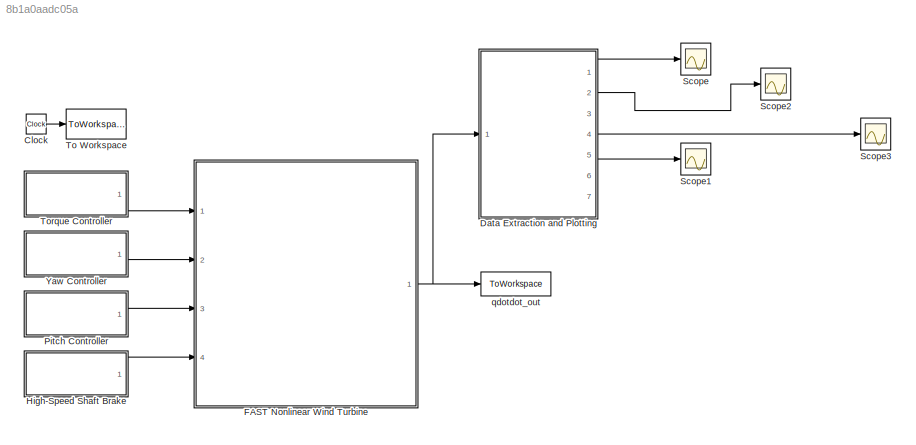
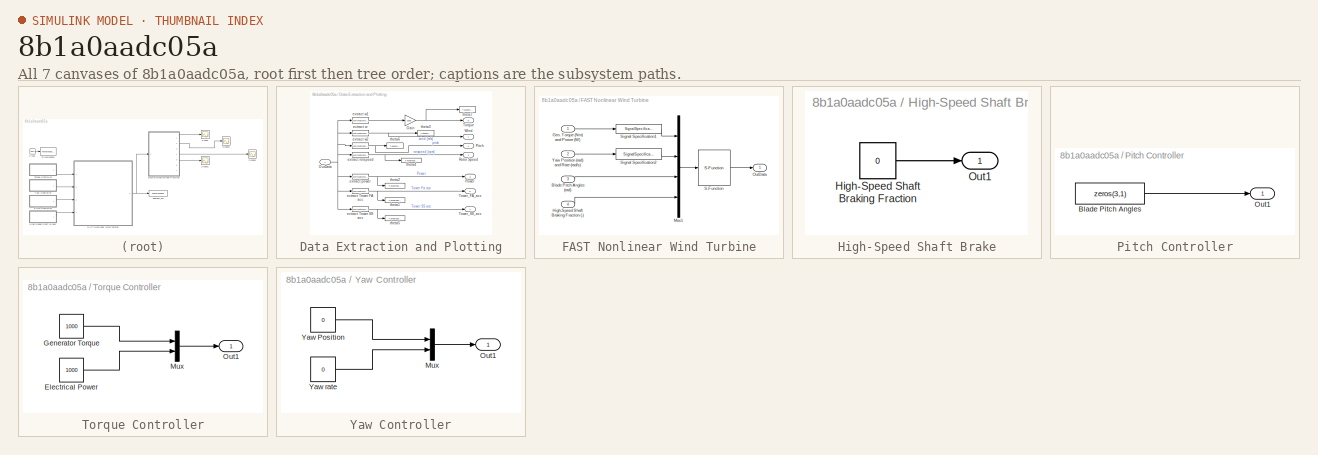
[diagram: thumbnail index - all 7 canvases of the model, root first then tree order]
MODEL slx_8b1a0aadc05a
KIND model
CONFIG AbsTol = auto
CONFIG EnableMultiTasking = on
CONFIG FixedStep = DT
CONFIG MaxStep = DT
CONFIG MinStep = auto
CONFIG RelTol = 1e-3
CONFIG SampleTimeConstraint = Unconstrained
CONFIG Solver = ode4
CONFIG SolverName = ode4
CONFIG StartTime = 0.0
CONFIG StopTime = TMax
BLOCK [Clock] Clock
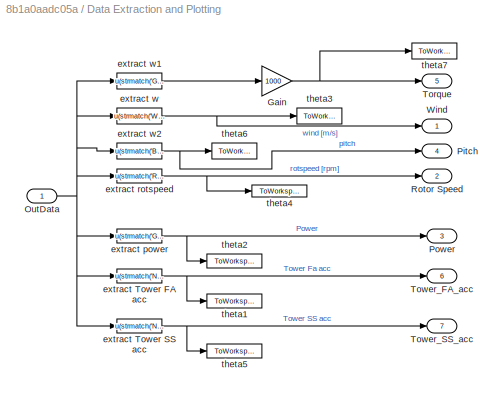
BLOCK [SubSystem] Data Extraction and Plotting
  Ports = [1, 7]
  RequestExecContextInheritance = off
  Variant = off
BLOCK [Gain] Data Extraction and Plotting/Gain
  Gain = 1000
  OutDataTypeStr = Inherit: Inherit via internal rule
  ParamDataTypeStr = Inherit: Inherit via internal rule
  SaturateOnIntegerOverflow = off
BLOCK [Inport] Data Extraction and Plotting/OutData
  IconDisplay = Port number
BLOCK [Outport] Data Extraction and Plotting/Pitch
  IconDisplay = Port number
  Port = 4
BLOCK [Outport] Data Extraction and Plotting/Power
  IconDisplay = Port number
  Port = 3
BLOCK [Outport] Data Extraction and Plotting/Rotor Speed
  IconDisplay = Port number
  Port = 2
BLOCK [Outport] Data Extraction and Plotting/Torque
  IconDisplay = Port number
  Port = 5
BLOCK [Outport] Data Extraction and Plotting/Tower_FA_acc
  IconDisplay = Port number
  Port = 6
BLOCK [Outport] Data Extraction and Plotting/Tower_SS_acc
  IconDisplay = Port number
  Port = 7
BLOCK [Outport] Data Extraction and Plotting/Wind
  IconDisplay = Port number
BLOCK [Fcn] Data Extraction and Plotting/extract Tower FA acc
  Expr = u(strmatch('NcIMUTAxs',OutList))
BLOCK [Fcn] Data Extraction and Plotting/extract Tower SS acc
  Expr = u(strmatch('NcIMUTAys',OutList))
BLOCK [Fcn] Data Extraction and Plotting/extract power
  Expr = u(strmatch('GenPwr',OutList))
BLOCK [Fcn] Data Extraction and Plotting/extract rotspeed
  Expr = u(strmatch('RotSpeed',OutList))
BLOCK [Fcn] Data Extraction and Plotting/extract w
  Expr = u(strmatch('Wind1VelX',OutList))
BLOCK [Fcn] Data Extraction and Plotting/extract w1
  Expr = u(strmatch('GenTq',OutList))
BLOCK [Fcn] Data Extraction and Plotting/extract w2
  Expr = u(strmatch('BlPitch1',OutList))
BLOCK [ToWorkspace] Data Extraction and Plotting/theta1
  Decimation = 3
  MaxDataPoints = Inf
  Ports = [1]
  SampleTime = -1
  VariableName = Tower_fa
BLOCK [ToWorkspace] Data Extraction and Plotting/theta2
  Decimation = 3
  MaxDataPoints = Inf
  Ports = [1]
  SampleTime = -1
  VariableName = GenPwr
BLOCK [ToWorkspace] Data Extraction and Plotting/theta3
  Decimation = 3
  MaxDataPoints = Inf
  Ports = [1]
  SampleTime = -1
  VariableName = wind
BLOCK [ToWorkspace] Data Extraction and Plotting/theta4
  Decimation = 3
  MaxDataPoints = Inf
  Ports = [1]
  SampleTime = -1
  VariableName = rotspeed
BLOCK [ToWorkspace] Data Extraction and Plotting/theta5
  Decimation = 3
  MaxDataPoints = Inf
  Ports = [1]
  SampleTime = -1
  VariableName = Tower_ss
BLOCK [ToWorkspace] Data Extraction and Plotting/theta6
  Decimation = 3
  MaxDataPoints = Inf
  Ports = [1]
  SampleTime = -1
  VariableName = pitch
BLOCK [ToWorkspace] Data Extraction and Plotting/theta7
  Decimation = 3
  MaxDataPoints = Inf
  Ports = [1]
  SampleTime = -1
  VariableName = Torque
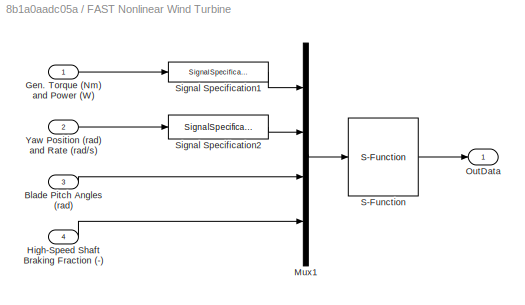
BLOCK [SubSystem] FAST Nonlinear Wind Turbine
  Ports = [4, 1]
  RequestExecContextInheritance = off
  Variant = off
BLOCK [Inport] FAST Nonlinear Wind Turbine/Blade Pitch Angles (rad)
  IconDisplay = Port number
  Port = 3
BLOCK [Inport] FAST Nonlinear Wind Turbine/Gen. Torque (Nm) and Power (W)
  IconDisplay = Port number
BLOCK [Inport] FAST Nonlinear Wind Turbine/High-Speed Shaft Braking Fraction (-)
  IconDisplay = Port number
  Port = 4
BLOCK [Mux] FAST Nonlinear Wind Turbine/Mux1
  DisplayOption = bar
  Ports = [4, 1]
BLOCK [Outport] FAST Nonlinear Wind Turbine/OutData
  IconDisplay = Port number
BLOCK [S-Function] FAST Nonlinear Wind Turbine/S-Function
  EnableBusSupport = off
  FunctionName = FAST_SFunc
  Parameters = FAST_InputFileName, TMax, 0
  Ports = [1, 1]
  SFcnIsStateOwnerBlock = off
  SFunctionDeploymentMode = off
BLOCK [SignalSpecification] FAST Nonlinear Wind Turbine/Signal Specification1
  Dimensions = 2
  OutDataTypeStr = double
  SignalType = real
BLOCK [SignalSpecification] FAST Nonlinear Wind Turbine/Signal Specification2
  Dimensions = 2
  OutDataTypeStr = double
  SignalType = real
BLOCK [Inport] FAST Nonlinear Wind Turbine/Yaw Position (rad) and Rate (rad//s)
  IconDisplay = Port number
  Port = 2
BLOCK [SubSystem] High-Speed Shaft Brake
  Ports = [0, 1]
  RequestExecContextInheritance = off
  Variant = off
BLOCK [Constant] High-Speed Shaft Brake/High-Speed Shaft Braking Fraction
  Value = 0
BLOCK [Outport] High-Speed Shaft Brake/Out1
  IconDisplay = Port number
BLOCK [SubSystem] Pitch Controller
  Ports = [0, 1]
  RequestExecContextInheritance = off
  Variant = off
BLOCK [Constant] Pitch Controller/Blade Pitch Angles
  Value = zeros(3,1)
BLOCK [Outport] Pitch Controller/Out1
  IconDisplay = Port number
BLOCK [Scope] Scope
  NumInputPorts = 1
  Ports = [1]
  ScopeSpecificationString = Simulink.scopes.TimeScopeBlockCfg('CurrentConfiguration', extmgr.ConfigurationSet(extmgr.Configuration('Core','General UI',true),extmgr.Configuration('Core','Source UI',true),extmgr.Configuration('Sources','WiredSimulink',true),extmgr.Configuration('Visuals','Time Domain',true,'SerializedDisplays',{struct('MinYLimReal','7.00000','MaxYLimReal','9.00000','YLabelReal','','MinYLimMag','7.00000','MaxYL...<+1390ch>
BLOCK [Scope] Scope1
  NumInputPorts = 1
  Ports = [1]
  ScopeSpecificationString = Simulink.scopes.TimeScopeBlockCfg('CurrentConfiguration', extmgr.ConfigurationSet(extmgr.Configuration('Core','General UI',true),extmgr.Configuration('Core','Source UI',true),extmgr.Configuration('Sources','WiredSimulink',true,'DataLoggingVariableName','ScopeData1'),extmgr.Configuration('Visuals','Time Domain',true,'SerializedDisplays',{struct('MinYLimReal','16262.97283','MaxYLimReal','46074.11671...<+1479ch>
BLOCK [Scope] Scope2
  NumInputPorts = 1
  Ports = [1]
  ScopeSpecificationString = Simulink.scopes.TimeScopeBlockCfg('CurrentConfiguration', extmgr.ConfigurationSet(extmgr.Configuration('Core','General UI',true),extmgr.Configuration('Core','Source UI',true),extmgr.Configuration('Sources','WiredSimulink',true,'DataLoggingVariableName','ScopeData2'),extmgr.Configuration('Visuals','Time Domain',true,'SerializedDisplays',{struct('MinYLimReal','8.33786','MaxYLimReal','15.62092','YLab...<+1466ch>
BLOCK [Scope] Scope3
  NumInputPorts = 1
  Ports = [1]
  ScopeSpecificationString = Simulink.scopes.TimeScopeBlockCfg('CurrentConfiguration', extmgr.ConfigurationSet(extmgr.Configuration('Core','General UI',true),extmgr.Configuration('Core','Source UI',true),extmgr.Configuration('Sources','WiredSimulink',true,'DataLoggingVariableName','ScopeData3'),extmgr.Configuration('Visuals','Time Domain',true,'SerializedDisplays',{struct('MinYLimReal','-1.00000','MaxYLimReal','1.00000','YLab...<+1393ch>
BLOCK [ToWorkspace] To Workspace
  MaxDataPoints = inf
  Ports = [1]
  SampleTime = -1
  VariableName = Time
BLOCK [SubSystem] Torque Controller
  Ports = [0, 1]
  RequestExecContextInheritance = off
  Variant = off
BLOCK [Constant] Torque Controller/Electrical Power
  Value = 1000
BLOCK [Constant] Torque Controller/Generator Torque
  Value = 1000
BLOCK [Mux] Torque Controller/Mux
  DisplayOption = bar
  Inputs = 2
  Ports = [2, 1]
BLOCK [Outport] Torque Controller/Out1
  IconDisplay = Port number
BLOCK [SubSystem] Yaw Controller
  Ports = [0, 1]
  RequestExecContextInheritance = off
  Variant = off
BLOCK [Mux] Yaw Controller/Mux
  DisplayOption = bar
  Inputs = 2
  Ports = [2, 1]
BLOCK [Outport] Yaw Controller/Out1
  IconDisplay = Port number
BLOCK [Constant] Yaw Controller/Yaw Position
  Value = 0
BLOCK [Constant] Yaw Controller/Yaw rate
  Value = 0
BLOCK [ToWorkspace] qdotdot_out
  MaxDataPoints = inf
  Ports = [1]
  SampleTime = -1
  VariableName = OutData
LINE Clock:1 -> To Workspace:1
NET Data Extraction and Plotting/Gain:1 -> Data Extraction and Plotting/Torque:1, Data Extraction and Plotting/theta7:1
NET Data Extraction and Plotting/OutData:1 -> Data Extraction and Plotting/extract Tower FA acc:1, Data Extraction and Plotting/extract Tower SS acc:1, Data Extraction and Plotting/extract power:1, Data Extraction and Plotting/extract rotspeed:1, Data Extraction and Plotting/extract w1:1, Data Extraction and Plotting/extract w2:1, Data Extraction and Plotting/extract w:1
NET Data Extraction and Plotting/extract Tower FA acc:1 -> Data Extraction and Plotting/Tower_FA_acc:1, Data Extraction and Plotting/theta1:1
NET Data Extraction and Plotting/extract Tower SS acc:1 -> Data Extraction and Plotting/Tower_SS_acc:1, Data Extraction and Plotting/theta5:1
NET Data Extraction and Plotting/extract power:1 -> Data Extraction and Plotting/Power:1, Data Extraction and Plotting/theta2:1
NET Data Extraction and Plotting/extract rotspeed:1 -> Data Extraction and Plotting/Rotor Speed:1, Data Extraction and Plotting/theta4:1
LINE Data Extraction and Plotting/extract w1:1 -> Data Extraction and Plotting/Gain:1
NET Data Extraction and Plotting/extract w2:1 -> Data Extraction and Plotting/Pitch:1, Data Extraction and Plotting/theta6:1
NET Data Extraction and Plotting/extract w:1 -> Data Extraction and Plotting/Wind:1, Data Extraction and Plotting/theta3:1
LINE Data Extraction and Plotting:1 -> Scope:1
LINE Data Extraction and Plotting:2 -> Scope2:1
LINE Data Extraction and Plotting:4 -> Scope3:1
LINE Data Extraction and Plotting:5 -> Scope1:1
LINE FAST Nonlinear Wind Turbine/Blade Pitch Angles (rad):1 -> FAST Nonlinear Wind Turbine/Mux1:3
LINE FAST Nonlinear Wind Turbine/Gen. Torque (Nm) and Power (W):1 -> FAST Nonlinear Wind Turbine/Signal Specification1:1
LINE FAST Nonlinear Wind Turbine/High-Speed Shaft Braking Fraction (-):1 -> FAST Nonlinear Wind Turbine/Mux1:4
LINE FAST Nonlinear Wind Turbine/Mux1:1 -> FAST Nonlinear Wind Turbine/S-Function:1
LINE FAST Nonlinear Wind Turbine/S-Function:1 -> FAST Nonlinear Wind Turbine/OutData:1
LINE FAST Nonlinear Wind Turbine/Signal Specification1:1 -> FAST Nonlinear Wind Turbine/Mux1:1
LINE FAST Nonlinear Wind Turbine/Signal Specification2:1 -> FAST Nonlinear Wind Turbine/Mux1:2
LINE FAST Nonlinear Wind Turbine/Yaw Position (rad) and Rate (rad//s):1 -> FAST Nonlinear Wind Turbine/Signal Specification2:1
NET FAST Nonlinear Wind Turbine:1 -> Data Extraction and Plotting:1, qdotdot_out:1
LINE High-Speed Shaft Brake/High-Speed Shaft Braking Fraction:1 -> High-Speed Shaft Brake/Out1:1
LINE High-Speed Shaft Brake:1 -> FAST Nonlinear Wind Turbine:4
LINE Pitch Controller/Blade Pitch Angles:1 -> Pitch Controller/Out1:1
LINE Pitch Controller:1 -> FAST Nonlinear Wind Turbine:3
LINE Torque Controller/Electrical Power:1 -> Torque Controller/Mux:2
LINE Torque Controller/Generator Torque:1 -> Torque Controller/Mux:1
LINE Torque Controller/Mux:1 -> Torque Controller/Out1:1
LINE Torque Controller:1 -> FAST Nonlinear Wind Turbine:1
LINE Yaw Controller/Mux:1 -> Yaw Controller/Out1:1
LINE Yaw Controller/Yaw Position:1 -> Yaw Controller/Mux:1
LINE Yaw Controller/Yaw rate:1 -> Yaw Controller/Mux:2
LINE Yaw Controller:1 -> FAST Nonlinear Wind Turbine:2
note: NET lines group one-source signal fan-out (src -> all destinations, sorted); 1:1 wires keep LINE
